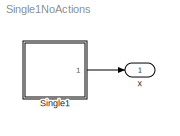
MODEL Single1NoActions
KIND model
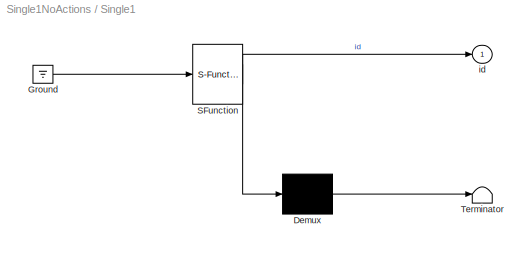
BLOCK [SubSystem] Single1
  ErrorFcn = Stateflow.Translate.translate
  PermitHierarchicalResolution = ExplicitOnly
  Ports = [0, 1]
  RequestExecContextInheritance = off
  SFBlockType = Chart
  SID = 1
  TreatAsAtomicUnit = on
  Variant = off
BLOCK [Demux] Single1/ Demux 
  Outputs = 1
  Ports = [1, 1]
  SID = 1::15
BLOCK [Ground] Single1/ Ground 
  SID = 1::17
BLOCK [S-Function] Single1/ SFunction 
  EnableBusSupport = on
  FunctionName = sf_sfun
  PortCounts = [1 2]
  Ports = [1, 2]
  SFcnIsStateOwnerBlock = off
  SFunctionDeploymentMode = off
  SID = 1::14
  Tag = Stateflow S-Function Single1NoActions 1
BLOCK [Terminator] Single1/ Terminator 
  SID = 1::16
BLOCK [Outport] Single1/id
  IconDisplay = Port number
  SID = 1::18
BLOCK [Outport] x
  IconDisplay = Port number
  SID = 2
LINE Single1/ Demux :1 -> Single1/ Terminator :1
LINE Single1/ Ground :1 -> Single1/ SFunction :1
LINE Single1/ SFunction :1 -> Single1/ Demux :1
LINE Single1/ SFunction :2 -> Single1/id:1
LINE Single1:1 -> x:1
CHART Single1 states=1 transitions=0
  STATE_LABEL 'A/\\nen: id=1;'
